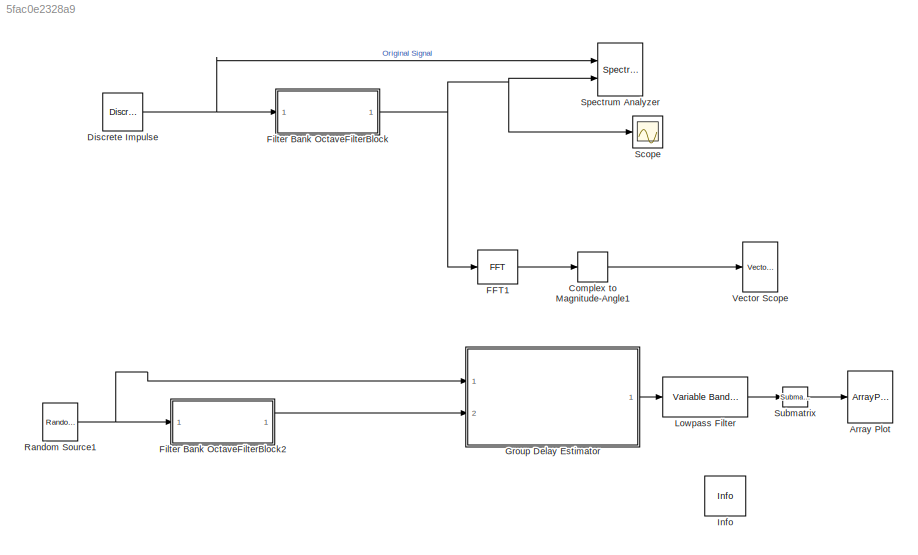
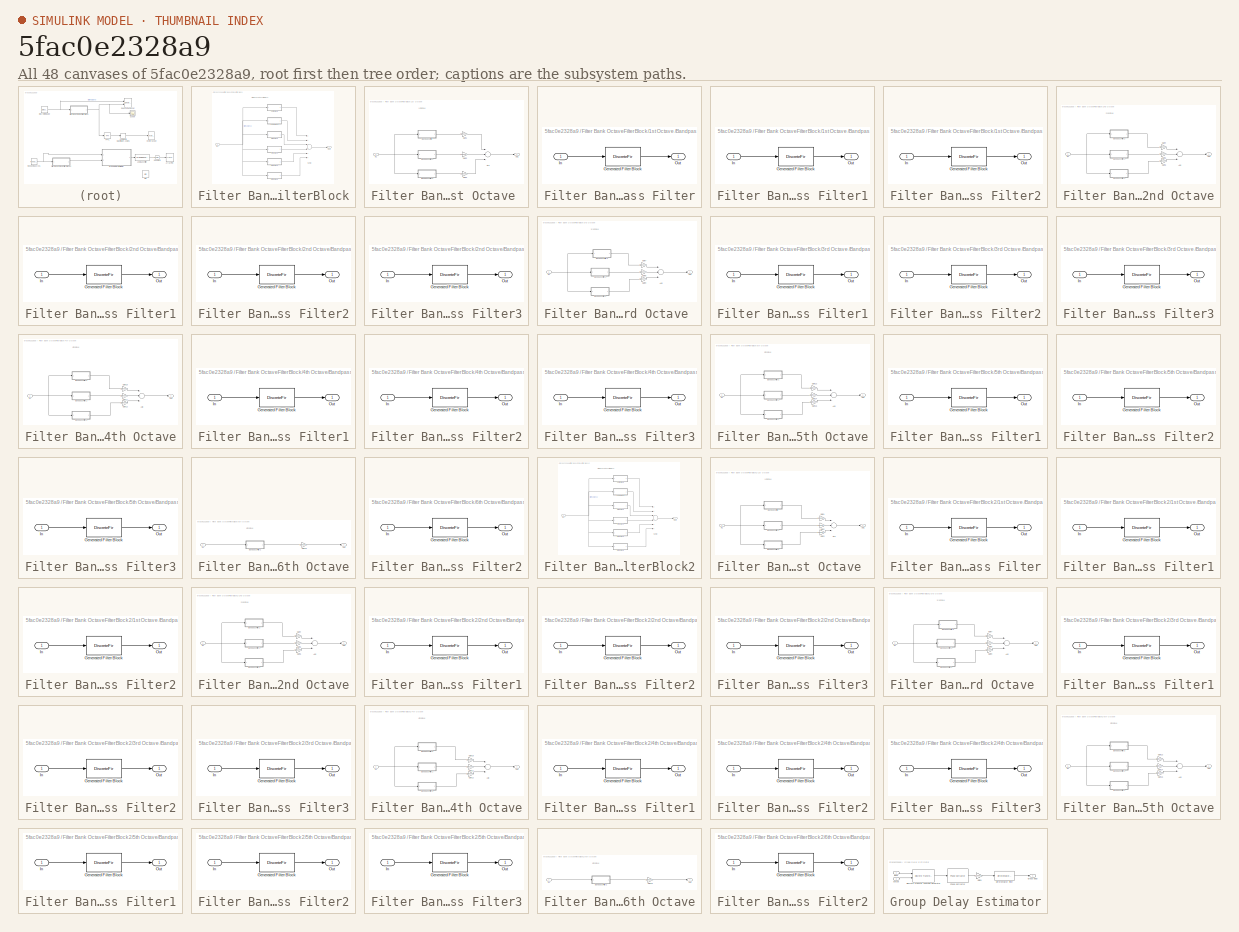
[diagram: thumbnail index - all 48 canvases of the model, root first then tree order]
MODEL slx_5fac0e2328a9
KIND model
CONFIG AbsTol = auto
CONFIG EnableMultiTasking = off
CONFIG FixedStep = auto
CONFIG MaxStep = auto
CONFIG MinStep = auto
CONFIG RelTol = 1e-3
CONFIG SampleTimeConstraint = Unconstrained
CONFIG Solver = FixedStepDiscrete
CONFIG SolverName = FixedStepDiscrete
CONFIG StartTime = 0.0
CONFIG StopTime = 0.01
BLOCK [ArrayPlot] Array Plot
  Ports = [1]
  ScopeSpecificationString = dsp.scopes.ArrayPlotBlockSpecification('CurrentConfiguration', extmgr.ConfigurationSet(extmgr.Configuration('Core','General UI',true),extmgr.Configuration('Core','Source UI',true),extmgr.Configuration('Sources','WiredSimulink',true),extmgr.Configuration('Sources','File',false),extmgr.Configuration('Sources','SPTool',false),extmgr.Configuration('Sources','SimulinkEvent',false),extmgr.Configuration(...<+3063ch>
BLOCK [ComplexToMagnitudeAngle] Complex to Magnitude-Angle1
  Output = Magnitude
  Ports = [1, 1]
BLOCK [Reference] Discrete Impulse  REF=dspsrcs4/Discrete 
Impulse
  Ports = [0, 1]
  SourceBlock = dspsrcs4/Discrete \nImpulse
  SourceProductBaseCode = DS
  SourceProductName = DSP System Toolbox
  SourceType = Discrete Impulse
BLOCK [Reference] FFT1  REF=dspxfrm3/FFT
  Ports = [1, 1]
  SourceBlock = dspxfrm3/FFT
  SourceProductBaseCode = DS
  SourceProductName = DSP System Toolbox
  SourceType = FFT
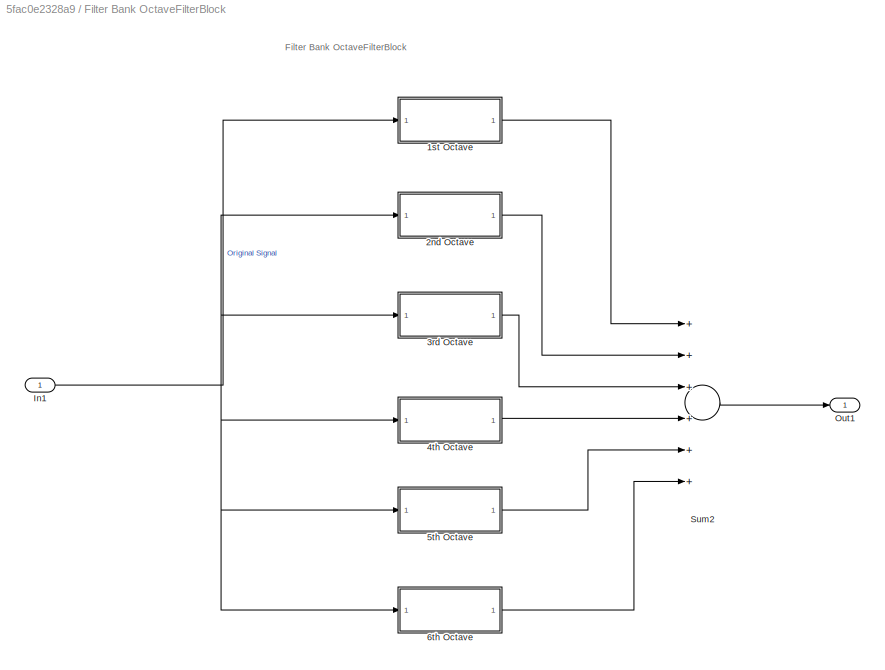
BLOCK [SubSystem] Filter Bank OctaveFilterBlock
  Ports = [1, 1]
  RequestExecContextInheritance = off
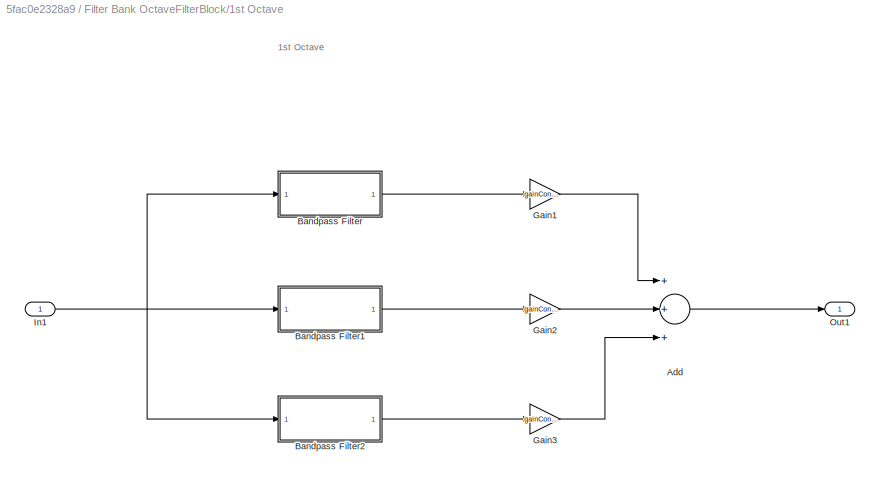
BLOCK [SubSystem] Filter Bank OctaveFilterBlock/1st Octave 
  Ports = [1, 1]
  RequestExecContextInheritance = off
BLOCK [Sum] Filter Bank OctaveFilterBlock/1st Octave /Add
  InputSameDT = off
  Inputs = +++
  OutDataTypeStr = Inherit: Inherit via internal rule
  Ports = [3, 1]
  SaturateOnIntegerOverflow = off
BLOCK [SubSystem] Filter Bank OctaveFilterBlock/1st Octave /Bandpass Filter
  CopyFcn = fdesignblkfcn(gcbh, {'CopyFcn'});
  DialogController = fdesignblkfcn
  InitFcn = fdesignblkfcn(gcbh, {'InitFcn'});
  Ports = [1, 1]
  RequestExecContextInheritance = off
  UserDataPersistent = on
BLOCK [DiscreteFir] Filter Bank OctaveFilterBlock/1st Octave /Bandpass Filter/Generated Filter Block
  Coefficients = [0.000697642726900061898 8.09552427272728785e-05 8.54298578400442639e-05 8.98807771459664761e-05 9.43384731455670006e-05 9.87461148585240788e-05 0.00010312821470486701 0.000107425015934631512 0.000111661748195207504 0.000115768831845649133 0.00011977430759990099 0.000123604129136607282 0.000127288473311339698 0.000130754241930446531 0.000134037240931339594 0.000137069071879046875 0.000139898927035...<+16392ch>
  InputPortMap = u0
  InputProcessing = Columns as channels (frame based)
  OutputPortMap = o0
  Ports = [1, 1]
  Tag = BlockMethodSubSystem
BLOCK [Inport] Filter Bank OctaveFilterBlock/1st Octave /Bandpass Filter/In
  IconDisplay = Port number
BLOCK [Outport] Filter Bank OctaveFilterBlock/1st Octave /Bandpass Filter/Out
  IconDisplay = Port number
BLOCK [SubSystem] Filter Bank OctaveFilterBlock/1st Octave /Bandpass Filter1
  CopyFcn = fdesignblkfcn(gcbh, {'CopyFcn'});
  DialogController = fdesignblkfcn
  InitFcn = fdesignblkfcn(gcbh, {'InitFcn'});
  Ports = [1, 1]
  RequestExecContextInheritance = off
  UserDataPersistent = on
BLOCK [DiscreteFir] Filter Bank OctaveFilterBlock/1st Octave /Bandpass Filter1/Generated Filter Block
  Coefficients = [0.000708175514999469084 0.000104264313023658849 0.000111361362035249646 0.000118517739355487319 0.000125497090197966387 0.000132477975980888757 0.000139220911941990224 0.000145906608764827294 0.000152277950639121871 0.00015852245229541382 0.000164360606620211344 0.00016996857707400422 0.000175054249803248001 0.000179791061638332866 0.000183869927670265743 0.000187484213926622018 0.000190327248390...<+12872ch>
  InputPortMap = u0
  InputProcessing = Columns as channels (frame based)
  OutputPortMap = o0
  Ports = [1, 1]
  Tag = BlockMethodSubSystem
BLOCK [Inport] Filter Bank OctaveFilterBlock/1st Octave /Bandpass Filter1/In
  IconDisplay = Port number
BLOCK [Outport] Filter Bank OctaveFilterBlock/1st Octave /Bandpass Filter1/Out
  IconDisplay = Port number
BLOCK [SubSystem] Filter Bank OctaveFilterBlock/1st Octave /Bandpass Filter2
  CopyFcn = fdesignblkfcn(gcbh, {'CopyFcn'});
  DialogController = fdesignblkfcn
  InitFcn = fdesignblkfcn(gcbh, {'InitFcn'});
  Ports = [1, 1]
  RequestExecContextInheritance = off
  UserDataPersistent = on
BLOCK [DiscreteFir] Filter Bank OctaveFilterBlock/1st Octave /Bandpass Filter2/Generated Filter Block
  Coefficients = [0.000720975150378335978 0.000132465913253748219 0.000143675086256149286 0.00015477809719773768 0.000165724802029335836 0.00017635194787220368 0.00018660193627196718 0.00019629220821321949 0.000205359434361544464 0.000213615111516083348 0.000220989594674704114 0.00022730548345745844 0.000232522830492244671 0.00023645013977597221 0.000239064494026561183 0.000240170220983498372 0.0002397338605313552...<+10083ch>
  InputPortMap = u0
  InputProcessing = Columns as channels (frame based)
  OutputPortMap = o0
  Ports = [1, 1]
  Tag = BlockMethodSubSystem
BLOCK [Inport] Filter Bank OctaveFilterBlock/1st Octave /Bandpass Filter2/In
  IconDisplay = Port number
BLOCK [Outport] Filter Bank OctaveFilterBlock/1st Octave /Bandpass Filter2/Out
  IconDisplay = Port number
BLOCK [Gain] Filter Bank OctaveFilterBlock/1st Octave /Gain1
  Gain = gainConsts(1)
  OutDataTypeStr = Inherit: Inherit via internal rule
  ParamDataTypeStr = Inherit: Inherit via internal rule
  SaturateOnIntegerOverflow = off
BLOCK [Gain] Filter Bank OctaveFilterBlock/1st Octave /Gain2
  Gain = gainConsts(2)
  OutDataTypeStr = Inherit: Inherit via internal rule
  ParamDataTypeStr = Inherit: Inherit via internal rule
  SaturateOnIntegerOverflow = off
BLOCK [Gain] Filter Bank OctaveFilterBlock/1st Octave /Gain3
  Gain = gainConsts(3)
  OutDataTypeStr = Inherit: Inherit via internal rule
  ParamDataTypeStr = Inherit: Inherit via internal rule
  SaturateOnIntegerOverflow = off
BLOCK [Inport] Filter Bank OctaveFilterBlock/1st Octave /In1
  IconDisplay = Port number
BLOCK [Outport] Filter Bank OctaveFilterBlock/1st Octave /Out1
  IconDisplay = Port number
BLOCK [SubSystem] Filter Bank OctaveFilterBlock/2nd Octave
  Ports = [1, 1]
  RequestExecContextInheritance = off
BLOCK [Sum] Filter Bank OctaveFilterBlock/2nd Octave/Add
  InputSameDT = off
  Inputs = +++
  OutDataTypeStr = Inherit: Inherit via internal rule
  Ports = [3, 1]
  SaturateOnIntegerOverflow = off
BLOCK [SubSystem] Filter Bank OctaveFilterBlock/2nd Octave/Bandpass Filter1
  CopyFcn = fdesignblkfcn(gcbh, {'CopyFcn'});
  DialogController = fdesignblkfcn
  InitFcn = fdesignblkfcn(gcbh, {'InitFcn'});
  Ports = [1, 1]
  RequestExecContextInheritance = off
  UserDataPersistent = on
BLOCK [DiscreteFir] Filter Bank OctaveFilterBlock/2nd Octave/Bandpass Filter1/Generated Filter Block
  Coefficients = [0.000760767564164171409 0.000223751714740847351 0.00025243459343590193 0.000280291144494304329 0.000306819543574286119 0.000331222462925934559 0.000352953962257938078 0.000371116746952470744 0.000385038341791835918 0.000393741555759821163 0.000396511609443955533 0.000392331633625824221 0.000380569010551279612 0.000360334373637478077 0.000331187035918907536 0.000292434486049688723 0.00024383590856...<+6195ch>
  InputPortMap = u0
  InputProcessing = Columns as channels (frame based)
  OutputPortMap = o0
  Ports = [1, 1]
  Tag = BlockMethodSubSystem
BLOCK [Inport] Filter Bank OctaveFilterBlock/2nd Octave/Bandpass Filter1/In
  IconDisplay = Port number
BLOCK [Outport] Filter Bank OctaveFilterBlock/2nd Octave/Bandpass Filter1/Out
  IconDisplay = Port number
BLOCK [SubSystem] Filter Bank OctaveFilterBlock/2nd Octave/Bandpass Filter2
  CopyFcn = fdesignblkfcn(gcbh, {'CopyFcn'});
  DialogController = fdesignblkfcn
  InitFcn = fdesignblkfcn(gcbh, {'InitFcn'});
  Ports = [1, 1]
  RequestExecContextInheritance = off
  UserDataPersistent = on
BLOCK [DiscreteFir] Filter Bank OctaveFilterBlock/2nd Octave/Bandpass Filter2/Generated Filter Block
  Coefficients = [0.000733879405990943228 0.000171363636636393999 0.000189363298927883324 0.000207351357043763411 0.000224575992158680812 0.000241198001119195642 0.000256541551693777029 0.000270928678791843621 0.000283602445869043495 0.000294736098855440196 0.000303059619002195042 0.000308858111447877256 0.00031126049951478755 0.0003122727375133677 0.000308306018486230069 0.00030046103591206989 0.00028952607209912...<+7945ch>
  InputPortMap = u0
  InputProcessing = Columns as channels (frame based)
  OutputPortMap = o0
  Ports = [1, 1]
  Tag = BlockMethodSubSystem
BLOCK [Inport] Filter Bank OctaveFilterBlock/2nd Octave/Bandpass Filter2/In
  IconDisplay = Port number
BLOCK [Outport] Filter Bank OctaveFilterBlock/2nd Octave/Bandpass Filter2/Out
  IconDisplay = Port number
BLOCK [SubSystem] Filter Bank OctaveFilterBlock/2nd Octave/Bandpass Filter3
  CopyFcn = fdesignblkfcn(gcbh, {'CopyFcn'});
  DialogController = fdesignblkfcn
  InitFcn = fdesignblkfcn(gcbh, {'InitFcn'});
  Ports = [1, 1]
  RequestExecContextInheritance = off
  UserDataPersistent = on
BLOCK [DiscreteFir] Filter Bank OctaveFilterBlock/2nd Octave/Bandpass Filter3/Generated Filter Block
  Coefficients = [0.00079224570193523467 0.000291618851613097043 0.000336771394108393088 0.00037972618728474315 0.000418876894477109832 0.000452178610308093796 0.000477742671623747252 0.000493400316001670752 0.000497245879491897604 0.000487153556689631231 0.000461454108627056762 0.000418257961463384281 0.000356239254059834425 0.000273907809289963269 0.000170515292377318418 4.53276290643200183e-05 -0.00010139100000...<+4803ch>
  InputPortMap = u0
  InputProcessing = Columns as channels (frame based)
  OutputPortMap = o0
  Ports = [1, 1]
  Tag = BlockMethodSubSystem
BLOCK [Inport] Filter Bank OctaveFilterBlock/2nd Octave/Bandpass Filter3/In
  IconDisplay = Port number
BLOCK [Outport] Filter Bank OctaveFilterBlock/2nd Octave/Bandpass Filter3/Out
  IconDisplay = Port number
BLOCK [Gain] Filter Bank OctaveFilterBlock/2nd Octave/Gain4
  Gain = gainConsts(4)
  OutDataTypeStr = Inherit: Inherit via internal rule
  ParamDataTypeStr = Inherit: Inherit via internal rule
  SaturateOnIntegerOverflow = off
BLOCK [Gain] Filter Bank OctaveFilterBlock/2nd Octave/Gain5
  Gain = gainConsts(5)
  OutDataTypeStr = Inherit: Inherit via internal rule
  ParamDataTypeStr = Inherit: Inherit via internal rule
  SaturateOnIntegerOverflow = off
BLOCK [Gain] Filter Bank OctaveFilterBlock/2nd Octave/Gain6
  Gain = gainConsts(6)
  OutDataTypeStr = Inherit: Inherit via internal rule
  ParamDataTypeStr = Inherit: Inherit via internal rule
  SaturateOnIntegerOverflow = off
BLOCK [Inport] Filter Bank OctaveFilterBlock/2nd Octave/In1
  IconDisplay = Port number
BLOCK [Outport] Filter Bank OctaveFilterBlock/2nd Octave/Out1
  IconDisplay = Port number
BLOCK [SubSystem] Filter Bank OctaveFilterBlock/3rd Octave 
  Ports = [1, 1]
  RequestExecContextInheritance = off
BLOCK [Sum] Filter Bank OctaveFilterBlock/3rd Octave /Add
  InputSameDT = off
  Inputs = +++
  OutDataTypeStr = Inherit: Inherit via internal rule
  Ports = [3, 1]
  SaturateOnIntegerOverflow = off
BLOCK [SubSystem] Filter Bank OctaveFilterBlock/3rd Octave /Bandpass Filter1
  CopyFcn = fdesignblkfcn(gcbh, {'CopyFcn'});
  DialogController = fdesignblkfcn
  InitFcn = fdesignblkfcn(gcbh, {'InitFcn'});
  Ports = [1, 1]
  RequestExecContextInheritance = off
  UserDataPersistent = on
BLOCK [DiscreteFir] Filter Bank OctaveFilterBlock/3rd Octave /Bandpass Filter1/Generated Filter Block
  Coefficients = [0.000879887238468582758 0.000508249215372833614 0.000617342658518047816 0.000709750859737136612 0.000773118552562523671 0.000794581699545184299 0.000761268970378269549 0.000661470667610482353 0.000485326037242428279 0.000226107324449730695 -0.000119219214006592976 -0.000548676537372334893 -0.00105505044346220584 -0.0016245155417541179 -0.00223723423341261286 -0.00286702151283234168 -0.00348278133...<+2875ch>
  InputPortMap = u0
  InputProcessing = Columns as channels (frame based)
  OutputPortMap = o0
  Ports = [1, 1]
  Tag = BlockMethodSubSystem
BLOCK [Inport] Filter Bank OctaveFilterBlock/3rd Octave /Bandpass Filter1/In
  IconDisplay = Port number
BLOCK [Outport] Filter Bank OctaveFilterBlock/3rd Octave /Bandpass Filter1/Out
  IconDisplay = Port number
BLOCK [SubSystem] Filter Bank OctaveFilterBlock/3rd Octave /Bandpass Filter2
  CopyFcn = fdesignblkfcn(gcbh, {'CopyFcn'});
  DialogController = fdesignblkfcn
  InitFcn = fdesignblkfcn(gcbh, {'InitFcn'});
  Ports = [1, 1]
  RequestExecContextInheritance = off
  UserDataPersistent = on
BLOCK [DiscreteFir] Filter Bank OctaveFilterBlock/3rd Octave /Bandpass Filter2/Generated Filter Block
  Coefficients = [0.00063517925852436233 0.000343672449874554925 0.000400769288140107244 0.000434792013947550126 0.000438549848898707017 0.000406668340000819874 0.000338380480193489189 0.000235922884747331017 0.000106019009957604568 -4.17023616409654529e-05 -0.000191109221176357031 -0.000327655663546958095 -0.00043590675857387972 -0.000500702447146835839 -0.000514253419201785261 -0.000472529442225310911 -0.0003812...<+2929ch>
  InputPortMap = u0
  InputProcessing = Columns as channels (frame based)
  OutputPortMap = o0
  Ports = [1, 1]
  Tag = BlockMethodSubSystem
BLOCK [Inport] Filter Bank OctaveFilterBlock/3rd Octave /Bandpass Filter2/In
  IconDisplay = Port number
BLOCK [Outport] Filter Bank OctaveFilterBlock/3rd Octave /Bandpass Filter2/Out
  IconDisplay = Port number
BLOCK [SubSystem] Filter Bank OctaveFilterBlock/3rd Octave /Bandpass Filter3
  CopyFcn = fdesignblkfcn(gcbh, {'CopyFcn'});
  DialogController = fdesignblkfcn
  InitFcn = fdesignblkfcn(gcbh, {'InitFcn'});
  Ports = [1, 1]
  RequestExecContextInheritance = off
  UserDataPersistent = on
BLOCK [DiscreteFir] Filter Bank OctaveFilterBlock/3rd Octave /Bandpass Filter3/Generated Filter Block
  Coefficients = [0.000815437643410750913 0.000382029122691160113 0.000453583888078717956 0.000519511745383416509 0.000576207776322306808 0.000618340948053723409 0.000640792157246298285 0.000637247119229879515 0.000603715647093849535 0.000535998080113586758 0.000430896745634655801 0.00028281214778780523 9.35982464325863265e-05 -0.000139657845800591086 -0.000414830269032640821 -0.000728289989522683105 -0.0010757721...<+3731ch>
  InputPortMap = u0
  InputProcessing = Columns as channels (frame based)
  OutputPortMap = o0
  Ports = [1, 1]
  Tag = BlockMethodSubSystem
BLOCK [Inport] Filter Bank OctaveFilterBlock/3rd Octave /Bandpass Filter3/In
  IconDisplay = Port number
BLOCK [Outport] Filter Bank OctaveFilterBlock/3rd Octave /Bandpass Filter3/Out
  IconDisplay = Port number
BLOCK [Gain] Filter Bank OctaveFilterBlock/3rd Octave /Gain7
  Gain = gainConsts(7)
  OutDataTypeStr = Inherit: Inherit via internal rule
  ParamDataTypeStr = Inherit: Inherit via internal rule
  SaturateOnIntegerOverflow = off
BLOCK [Gain] Filter Bank OctaveFilterBlock/3rd Octave /Gain8
  Gain = gainConsts(8)
  OutDataTypeStr = Inherit: Inherit via internal rule
  ParamDataTypeStr = Inherit: Inherit via internal rule
  SaturateOnIntegerOverflow = off
BLOCK [Gain] Filter Bank OctaveFilterBlock/3rd Octave /Gain9
  Gain = gainConsts(9)
  OutDataTypeStr = Inherit: Inherit via internal rule
  ParamDataTypeStr = Inherit: Inherit via internal rule
  SaturateOnIntegerOverflow = off
BLOCK [Inport] Filter Bank OctaveFilterBlock/3rd Octave /In1
  IconDisplay = Port number
BLOCK [Outport] Filter Bank OctaveFilterBlock/3rd Octave /Out1
  IconDisplay = Port number
BLOCK [SubSystem] Filter Bank OctaveFilterBlock/4th Octave
  Ports = [1, 1]
  RequestExecContextInheritance = off
BLOCK [Sum] Filter Bank OctaveFilterBlock/4th Octave/Add
  InputSameDT = off
  Inputs = +++
  OutDataTypeStr = Inherit: Inherit via internal rule
  Ports = [3, 1]
  SaturateOnIntegerOverflow = off
BLOCK [SubSystem] Filter Bank OctaveFilterBlock/4th Octave/Bandpass Filter1
  CopyFcn = fdesignblkfcn(gcbh, {'CopyFcn'});
  DialogController = fdesignblkfcn
  InitFcn = fdesignblkfcn(gcbh, {'InitFcn'});
  Ports = [1, 1]
  RequestExecContextInheritance = off
  UserDataPersistent = on
BLOCK [DiscreteFir] Filter Bank OctaveFilterBlock/4th Octave/Bandpass Filter1/Generated Filter Block
  Coefficients = [0.000746143131275202732 0.000626565380404880382 0.000727127228911056715 0.000700971958528801248 0.000523883856948233347 0.000209515975131719149 -0.000183787941035216853 -0.000562817572333216805 -0.000826979842018317956 -0.000892680879529335076 -0.000734554600624869394 -0.000404705572708733623 -4.23108492317536512e-05 0.000150082200647903353 -4.61588040558318178e-05 -0.000798459104446176595 -0.002...<+1717ch>
  InputPortMap = u0
  InputProcessing = Columns as channels (frame based)
  OutputPortMap = o0
  Ports = [1, 1]
  Tag = BlockMethodSubSystem
BLOCK [Inport] Filter Bank OctaveFilterBlock/4th Octave/Bandpass Filter1/In
  IconDisplay = Port number
BLOCK [Outport] Filter Bank OctaveFilterBlock/4th Octave/Bandpass Filter1/Out
  IconDisplay = Port number
BLOCK [SubSystem] Filter Bank OctaveFilterBlock/4th Octave/Bandpass Filter2
  CopyFcn = fdesignblkfcn(gcbh, {'CopyFcn'});
  DialogController = fdesignblkfcn
  InitFcn = fdesignblkfcn(gcbh, {'InitFcn'});
  Ports = [1, 1]
  RequestExecContextInheritance = off
  UserDataPersistent = on
BLOCK [DiscreteFir] Filter Bank OctaveFilterBlock/4th Octave/Bandpass Filter2/Generated Filter Block
  Coefficients = [0.000681109254561113779 0.000460307095765863687 0.000539562235073668696 0.000564910164619544623 0.000520950621639371439 0.000402791258609352791 0.000217773398725725143 -1.24941211012565381e-05 -0.00025529870308604592 -0.000470633787392438555 -0.000619360079100998652 -0.000670834362903992808 -0.00061191011434792871 -0.000452804178156005204 -0.000231528095397451626 -1.13097415107503182e-05 0.000125...<+2241ch>
  InputPortMap = u0
  InputProcessing = Columns as channels (frame based)
  OutputPortMap = o0
  Ports = [1, 1]
  Tag = BlockMethodSubSystem
BLOCK [Inport] Filter Bank OctaveFilterBlock/4th Octave/Bandpass Filter2/In
  IconDisplay = Port number
BLOCK [Outport] Filter Bank OctaveFilterBlock/4th Octave/Bandpass Filter2/Out
  IconDisplay = Port number
BLOCK [SubSystem] Filter Bank OctaveFilterBlock/4th Octave/Bandpass Filter3
  CopyFcn = fdesignblkfcn(gcbh, {'CopyFcn'});
  DialogController = fdesignblkfcn
  InitFcn = fdesignblkfcn(gcbh, {'InitFcn'});
  Ports = [1, 1]
  RequestExecContextInheritance = off
  UserDataPersistent = on
BLOCK [DiscreteFir] Filter Bank OctaveFilterBlock/4th Octave/Bandpass Filter3/Generated Filter Block
  Coefficients = [0.000834980414865819356 0.000758537114921308464 0.000781694176598623299 0.00054466429463724173 8.61995659235487112e-05 -0.000435312793062589648 -0.000793750411080690614 -0.000802861100315392694 -0.000439258415819742721 7.69523068391865913e-05 0.000303204344288276117 -0.000277531622028373874 -0.00200611710080180004 -0.00477916301697617774 -0.00788442880375085468 -0.0100514558062380771 -0.009764131...<+1251ch>
  InputPortMap = u0
  InputProcessing = Columns as channels (frame based)
  OutputPortMap = o0
  Ports = [1, 1]
  Tag = BlockMethodSubSystem
BLOCK [Inport] Filter Bank OctaveFilterBlock/4th Octave/Bandpass Filter3/In
  IconDisplay = Port number
BLOCK [Outport] Filter Bank OctaveFilterBlock/4th Octave/Bandpass Filter3/Out
  IconDisplay = Port number
BLOCK [Gain] Filter Bank OctaveFilterBlock/4th Octave/Gain10
  Gain = gainConsts(10)
  OutDataTypeStr = Inherit: Inherit via internal rule
  ParamDataTypeStr = Inherit: Inherit via internal rule
  SaturateOnIntegerOverflow = off
BLOCK [Gain] Filter Bank OctaveFilterBlock/4th Octave/Gain11
  Gain = gainConsts(11)
  OutDataTypeStr = Inherit: Inherit via internal rule
  ParamDataTypeStr = Inherit: Inherit via internal rule
  SaturateOnIntegerOverflow = off
BLOCK [Gain] Filter Bank OctaveFilterBlock/4th Octave/Gain12
  Gain = gainConsts(12)
  OutDataTypeStr = Inherit: Inherit via internal rule
  ParamDataTypeStr = Inherit: Inherit via internal rule
  SaturateOnIntegerOverflow = off
BLOCK [Inport] Filter Bank OctaveFilterBlock/4th Octave/In1
  IconDisplay = Port number
BLOCK [Outport] Filter Bank OctaveFilterBlock/4th Octave/Out1
  IconDisplay = Port number
BLOCK [SubSystem] Filter Bank OctaveFilterBlock/5th Octave
  Ports = [1, 1]
  RequestExecContextInheritance = off
BLOCK [Sum] Filter Bank OctaveFilterBlock/5th Octave/Add
  InputSameDT = off
  Inputs = +++
  OutDataTypeStr = Inherit: Inherit via internal rule
  Ports = [3, 1]
  SaturateOnIntegerOverflow = off
BLOCK [SubSystem] Filter Bank OctaveFilterBlock/5th Octave/Bandpass Filter1
  CopyFcn = fdesignblkfcn(gcbh, {'CopyFcn'});
  DialogController = fdesignblkfcn
  InitFcn = fdesignblkfcn(gcbh, {'InitFcn'});
  Ports = [1, 1]
  RequestExecContextInheritance = off
  UserDataPersistent = on
BLOCK [DiscreteFir] Filter Bank OctaveFilterBlock/5th Octave/Bandpass Filter1/Generated Filter Block
  Coefficients = [0.00114862145201205263 0.00131833285851120871 0.000719536043768426604 -0.000617102813732732145 -0.00145555554540891538 -0.000809215789784403631 0.000382028317752004581 -0.000773186435706838481 -0.0063657485884708008 -0.0139026234890115251 -0.0155350263414090351 -0.0030858431848391852 0.0233594211862954461 0.0503936666519976748 0.0564365647785935384 0.0265988111397687729 -0.0324544713295540493 -0....<+638ch>
  InputPortMap = u0
  InputProcessing = Columns as channels (frame based)
  OutputPortMap = o0
  Ports = [1, 1]
  Tag = BlockMethodSubSystem
BLOCK [Inport] Filter Bank OctaveFilterBlock/5th Octave/Bandpass Filter1/In
  IconDisplay = Port number
BLOCK [Outport] Filter Bank OctaveFilterBlock/5th Octave/Bandpass Filter1/Out
  IconDisplay = Port number
BLOCK [SubSystem] Filter Bank OctaveFilterBlock/5th Octave/Bandpass Filter2
  CopyFcn = fdesignblkfcn(gcbh, {'CopyFcn'});
  DialogController = fdesignblkfcn
  InitFcn = fdesignblkfcn(gcbh, {'InitFcn'});
  Ports = [1, 1]
  RequestExecContextInheritance = off
  UserDataPersistent = on
BLOCK [DiscreteFir] Filter Bank OctaveFilterBlock/5th Octave/Bandpass Filter2/Generated Filter Block
  Coefficients = [0.00151584365982235865 0.00183803143299737966 9.55049013694802748e-05 -0.00217044486937161647 -0.00163083460048615587 0.000321575923661324777 -0.00350795324914445449 -0.0148448813368593623 -0.0189035120885649513 0.00440315076191577243 0.04952140860217287 0.0726968263932043224 0.0290947518963381412 -0.0679363240872678936 -0.136970218721865072 -0.0992890654566937342 0.0330627795074338593 0.15223628...<+419ch>
  InputPortMap = u0
  InputProcessing = Columns as channels (frame based)
  OutputPortMap = o0
  Ports = [1, 1]
  Tag = BlockMethodSubSystem
BLOCK [Inport] Filter Bank OctaveFilterBlock/5th Octave/Bandpass Filter2/In
  IconDisplay = Port number
BLOCK [Outport] Filter Bank OctaveFilterBlock/5th Octave/Bandpass Filter2/Out
  IconDisplay = Port number
BLOCK [SubSystem] Filter Bank OctaveFilterBlock/5th Octave/Bandpass Filter3
  CopyFcn = fdesignblkfcn(gcbh, {'CopyFcn'});
  DialogController = fdesignblkfcn
  InitFcn = fdesignblkfcn(gcbh, {'InitFcn'});
  Ports = [1, 1]
  RequestExecContextInheritance = off
  UserDataPersistent = on
BLOCK [DiscreteFir] Filter Bank OctaveFilterBlock/5th Octave/Bandpass Filter3/Generated Filter Block
  Coefficients = [0.000981554680392821878 0.00115333388075354267 0.00109873388342645326 0.00043982366924410403 -0.000584021660964255439 -0.00138924037976725727 -0.0014157858121889549 -0.000635827430481565267 0.000163068778350900867 -0.000342260347563741181 -0.00312586477499953623 -0.0077442425063377323 -0.0118105160437443017 -0.0116368277017497978 -0.0041020788487417725 0.0110070214340331728 0.0295195677922039483 ...<+916ch>
  InputPortMap = u0
  InputProcessing = Columns as channels (frame based)
  OutputPortMap = o0
  Ports = [1, 1]
  Tag = BlockMethodSubSystem
BLOCK [Inport] Filter Bank OctaveFilterBlock/5th Octave/Bandpass Filter3/In
  IconDisplay = Port number
BLOCK [Outport] Filter Bank OctaveFilterBlock/5th Octave/Bandpass Filter3/Out
  IconDisplay = Port number
BLOCK [Gain] Filter Bank OctaveFilterBlock/5th Octave/Gain13 
  Gain = gainConsts(13)
  OutDataTypeStr = Inherit: Inherit via internal rule
  ParamDataTypeStr = Inherit: Inherit via internal rule
  SaturateOnIntegerOverflow = off
BLOCK [Gain] Filter Bank OctaveFilterBlock/5th Octave/Gain14
  Gain = gainConsts(14)
  OutDataTypeStr = Inherit: Inherit via internal rule
  ParamDataTypeStr = Inherit: Inherit via internal rule
  SaturateOnIntegerOverflow = off
BLOCK [Gain] Filter Bank OctaveFilterBlock/5th Octave/Gain15
  Gain = gainConsts(15)
  OutDataTypeStr = Inherit: Inherit via internal rule
  ParamDataTypeStr = Inherit: Inherit via internal rule
  SaturateOnIntegerOverflow = off
BLOCK [Inport] Filter Bank OctaveFilterBlock/5th Octave/In1
  IconDisplay = Port number
BLOCK [Outport] Filter Bank OctaveFilterBlock/5th Octave/Out1
  IconDisplay = Port number
BLOCK [SubSystem] Filter Bank OctaveFilterBlock/6th Octave
  Ports = [1, 1]
  RequestExecContextInheritance = off
BLOCK [SubSystem] Filter Bank OctaveFilterBlock/6th Octave/Bandpass Filter2
  CopyFcn = fdesignblkfcn(gcbh, {'CopyFcn'});
  DialogController = fdesignblkfcn
  InitFcn = fdesignblkfcn(gcbh, {'InitFcn'});
  Ports = [1, 1]
  RequestExecContextInheritance = off
  UserDataPersistent = on
BLOCK [DiscreteFir] Filter Bank OctaveFilterBlock/6th Octave/Bandpass Filter2/Generated Filter Block
  Coefficients = [0.00244732072074808731 0.00292577073865543311 -0.00210530200146210548 -0.00513776375420919081 -0.000664946389453096426 -0.0044110688449519337 -0.0210527452480272423 -0.00756412752466452832 0.0582259412857624586 0.0876662268743735179 -0.016887458431121067 -0.161171540412106934 -0.129203390110322308 0.0873405369366493101 0.218599960139268856 0.0873405369366493101 -0.129203390110322308 -0.1611715404...<+264ch>
  InputPortMap = u0
  InputProcessing = Columns as channels (frame based)
  OutputPortMap = o0
  Ports = [1, 1]
  Tag = BlockMethodSubSystem
BLOCK [Inport] Filter Bank OctaveFilterBlock/6th Octave/Bandpass Filter2/In
  IconDisplay = Port number
BLOCK [Outport] Filter Bank OctaveFilterBlock/6th Octave/Bandpass Filter2/Out
  IconDisplay = Port number
BLOCK [Gain] Filter Bank OctaveFilterBlock/6th Octave/Gain16
  Gain = gainConsts(16)
  OutDataTypeStr = Inherit: Inherit via internal rule
  ParamDataTypeStr = Inherit: Inherit via internal rule
  SaturateOnIntegerOverflow = off
BLOCK [Inport] Filter Bank OctaveFilterBlock/6th Octave/In1
  IconDisplay = Port number
BLOCK [Outport] Filter Bank OctaveFilterBlock/6th Octave/Out1
  IconDisplay = Port number
BLOCK [Inport] Filter Bank OctaveFilterBlock/In1
  IconDisplay = Port number
BLOCK [Outport] Filter Bank OctaveFilterBlock/Out1
  IconDisplay = Port number
BLOCK [Sum] Filter Bank OctaveFilterBlock/Sum2
  InputSameDT = off
  Inputs = ++++++
  OutDataTypeStr = Inherit: Inherit via internal rule
  Ports = [6, 1]
  SaturateOnIntegerOverflow = off
BLOCK [SubSystem] Filter Bank OctaveFilterBlock2
  Ports = [1, 1]
  RequestExecContextInheritance = off
BLOCK [SubSystem] Filter Bank OctaveFilterBlock2/1st Octave 
  Ports = [1, 1]
  RequestExecContextInheritance = off
BLOCK [Sum] Filter Bank OctaveFilterBlock2/1st Octave /Add
  InputSameDT = off
  Inputs = +++
  OutDataTypeStr = Inherit: Inherit via internal rule
  Ports = [3, 1]
  SaturateOnIntegerOverflow = off
BLOCK [SubSystem] Filter Bank OctaveFilterBlock2/1st Octave /Bandpass Filter
  CopyFcn = fdesignblkfcn(gcbh, {'CopyFcn'});
  DialogController = fdesignblkfcn
  InitFcn = fdesignblkfcn(gcbh, {'InitFcn'});
  Ports = [1, 1]
  RequestExecContextInheritance = off
  UserDataPersistent = on
BLOCK [DiscreteFir] Filter Bank OctaveFilterBlock2/1st Octave /Bandpass Filter/Generated Filter Block
  Coefficients = [0.000697642726900061898 8.09552427272728785e-05 8.54298578400442639e-05 8.98807771459664761e-05 9.43384731455670006e-05 9.87461148585240788e-05 0.00010312821470486701 0.000107425015934631512 0.000111661748195207504 0.000115768831845649133 0.00011977430759990099 0.000123604129136607282 0.000127288473311339698 0.000130754241930446531 0.000134037240931339594 0.000137069071879046875 0.000139898927035...<+16392ch>
  InputPortMap = u0
  InputProcessing = Columns as channels (frame based)
  OutputPortMap = o0
  Ports = [1, 1]
  Tag = BlockMethodSubSystem
BLOCK [Inport] Filter Bank OctaveFilterBlock2/1st Octave /Bandpass Filter/In
  IconDisplay = Port number
BLOCK [Outport] Filter Bank OctaveFilterBlock2/1st Octave /Bandpass Filter/Out
  IconDisplay = Port number
BLOCK [SubSystem] Filter Bank OctaveFilterBlock2/1st Octave /Bandpass Filter1
  CopyFcn = fdesignblkfcn(gcbh, {'CopyFcn'});
  DialogController = fdesignblkfcn
  InitFcn = fdesignblkfcn(gcbh, {'InitFcn'});
  Ports = [1, 1]
  RequestExecContextInheritance = off
  UserDataPersistent = on
BLOCK [DiscreteFir] Filter Bank OctaveFilterBlock2/1st Octave /Bandpass Filter1/Generated Filter Block
  Coefficients = [0.000708175514999469084 0.000104264313023658849 0.000111361362035249646 0.000118517739355487319 0.000125497090197966387 0.000132477975980888757 0.000139220911941990224 0.000145906608764827294 0.000152277950639121871 0.00015852245229541382 0.000164360606620211344 0.00016996857707400422 0.000175054249803248001 0.000179791061638332866 0.000183869927670265743 0.000187484213926622018 0.000190327248390...<+12872ch>
  InputPortMap = u0
  InputProcessing = Columns as channels (frame based)
  OutputPortMap = o0
  Ports = [1, 1]
  Tag = BlockMethodSubSystem
BLOCK [Inport] Filter Bank OctaveFilterBlock2/1st Octave /Bandpass Filter1/In
  IconDisplay = Port number
BLOCK [Outport] Filter Bank OctaveFilterBlock2/1st Octave /Bandpass Filter1/Out
  IconDisplay = Port number
BLOCK [SubSystem] Filter Bank OctaveFilterBlock2/1st Octave /Bandpass Filter2
  CopyFcn = fdesignblkfcn(gcbh, {'CopyFcn'});
  DialogController = fdesignblkfcn
  InitFcn = fdesignblkfcn(gcbh, {'InitFcn'});
  Ports = [1, 1]
  RequestExecContextInheritance = off
  UserDataPersistent = on
BLOCK [DiscreteFir] Filter Bank OctaveFilterBlock2/1st Octave /Bandpass Filter2/Generated Filter Block
  Coefficients = [0.000720975150378335978 0.000132465913253748219 0.000143675086256149286 0.00015477809719773768 0.000165724802029335836 0.00017635194787220368 0.00018660193627196718 0.00019629220821321949 0.000205359434361544464 0.000213615111516083348 0.000220989594674704114 0.00022730548345745844 0.000232522830492244671 0.00023645013977597221 0.000239064494026561183 0.000240170220983498372 0.0002397338605313552...<+10083ch>
  InputPortMap = u0
  InputProcessing = Columns as channels (frame based)
  OutputPortMap = o0
  Ports = [1, 1]
  Tag = BlockMethodSubSystem
BLOCK [Inport] Filter Bank OctaveFilterBlock2/1st Octave /Bandpass Filter2/In
  IconDisplay = Port number
BLOCK [Outport] Filter Bank OctaveFilterBlock2/1st Octave /Bandpass Filter2/Out
  IconDisplay = Port number
BLOCK [Gain] Filter Bank OctaveFilterBlock2/1st Octave /Gain1
  Gain = gainConsts(1)
  OutDataTypeStr = Inherit: Inherit via internal rule
  ParamDataTypeStr = Inherit: Inherit via internal rule
  SaturateOnIntegerOverflow = off
BLOCK [Gain] Filter Bank OctaveFilterBlock2/1st Octave /Gain2
  Gain = gainConsts(2)
  OutDataTypeStr = Inherit: Inherit via internal rule
  ParamDataTypeStr = Inherit: Inherit via internal rule
  SaturateOnIntegerOverflow = off
BLOCK [Gain] Filter Bank OctaveFilterBlock2/1st Octave /Gain3
  Gain = gainConsts(3)
  OutDataTypeStr = Inherit: Inherit via internal rule
  ParamDataTypeStr = Inherit: Inherit via internal rule
  SaturateOnIntegerOverflow = off
BLOCK [Inport] Filter Bank OctaveFilterBlock2/1st Octave /In1
  IconDisplay = Port number
BLOCK [Outport] Filter Bank OctaveFilterBlock2/1st Octave /Out1
  IconDisplay = Port number
BLOCK [SubSystem] Filter Bank OctaveFilterBlock2/2nd Octave
  Ports = [1, 1]
  RequestExecContextInheritance = off
BLOCK [Sum] Filter Bank OctaveFilterBlock2/2nd Octave/Add
  InputSameDT = off
  Inputs = +++
  OutDataTypeStr = Inherit: Inherit via internal rule
  Ports = [3, 1]
  SaturateOnIntegerOverflow = off
BLOCK [SubSystem] Filter Bank OctaveFilterBlock2/2nd Octave/Bandpass Filter1
  CopyFcn = fdesignblkfcn(gcbh, {'CopyFcn'});
  DialogController = fdesignblkfcn
  InitFcn = fdesignblkfcn(gcbh, {'InitFcn'});
  Ports = [1, 1]
  RequestExecContextInheritance = off
  UserDataPersistent = on
BLOCK [DiscreteFir] Filter Bank OctaveFilterBlock2/2nd Octave/Bandpass Filter1/Generated Filter Block
  Coefficients = [0.000760767564164171409 0.000223751714740847351 0.00025243459343590193 0.000280291144494304329 0.000306819543574286119 0.000331222462925934559 0.000352953962257938078 0.000371116746952470744 0.000385038341791835918 0.000393741555759821163 0.000396511609443955533 0.000392331633625824221 0.000380569010551279612 0.000360334373637478077 0.000331187035918907536 0.000292434486049688723 0.00024383590856...<+6195ch>
  InputPortMap = u0
  InputProcessing = Columns as channels (frame based)
  OutputPortMap = o0
  Ports = [1, 1]
  Tag = BlockMethodSubSystem
BLOCK [Inport] Filter Bank OctaveFilterBlock2/2nd Octave/Bandpass Filter1/In
  IconDisplay = Port number
BLOCK [Outport] Filter Bank OctaveFilterBlock2/2nd Octave/Bandpass Filter1/Out
  IconDisplay = Port number
BLOCK [SubSystem] Filter Bank OctaveFilterBlock2/2nd Octave/Bandpass Filter2
  CopyFcn = fdesignblkfcn(gcbh, {'CopyFcn'});
  DialogController = fdesignblkfcn
  InitFcn = fdesignblkfcn(gcbh, {'InitFcn'});
  Ports = [1, 1]
  RequestExecContextInheritance = off
  UserDataPersistent = on
BLOCK [DiscreteFir] Filter Bank OctaveFilterBlock2/2nd Octave/Bandpass Filter2/Generated Filter Block
  Coefficients = [0.000733879405990943228 0.000171363636636393999 0.000189363298927883324 0.000207351357043763411 0.000224575992158680812 0.000241198001119195642 0.000256541551693777029 0.000270928678791843621 0.000283602445869043495 0.000294736098855440196 0.000303059619002195042 0.000308858111447877256 0.00031126049951478755 0.0003122727375133677 0.000308306018486230069 0.00030046103591206989 0.00028952607209912...<+7945ch>
  InputPortMap = u0
  InputProcessing = Columns as channels (frame based)
  OutputPortMap = o0
  Ports = [1, 1]
  Tag = BlockMethodSubSystem
BLOCK [Inport] Filter Bank OctaveFilterBlock2/2nd Octave/Bandpass Filter2/In
  IconDisplay = Port number
BLOCK [Outport] Filter Bank OctaveFilterBlock2/2nd Octave/Bandpass Filter2/Out
  IconDisplay = Port number
BLOCK [SubSystem] Filter Bank OctaveFilterBlock2/2nd Octave/Bandpass Filter3
  CopyFcn = fdesignblkfcn(gcbh, {'CopyFcn'});
  DialogController = fdesignblkfcn
  InitFcn = fdesignblkfcn(gcbh, {'InitFcn'});
  Ports = [1, 1]
  RequestExecContextInheritance = off
  UserDataPersistent = on
BLOCK [DiscreteFir] Filter Bank OctaveFilterBlock2/2nd Octave/Bandpass Filter3/Generated Filter Block
  Coefficients = [0.00079224570193523467 0.000291618851613097043 0.000336771394108393088 0.00037972618728474315 0.000418876894477109832 0.000452178610308093796 0.000477742671623747252 0.000493400316001670752 0.000497245879491897604 0.000487153556689631231 0.000461454108627056762 0.000418257961463384281 0.000356239254059834425 0.000273907809289963269 0.000170515292377318418 4.53276290643200183e-05 -0.00010139100000...<+4803ch>
  InputPortMap = u0
  InputProcessing = Columns as channels (frame based)
  OutputPortMap = o0
  Ports = [1, 1]
  Tag = BlockMethodSubSystem
BLOCK [Inport] Filter Bank OctaveFilterBlock2/2nd Octave/Bandpass Filter3/In
  IconDisplay = Port number
BLOCK [Outport] Filter Bank OctaveFilterBlock2/2nd Octave/Bandpass Filter3/Out
  IconDisplay = Port number
BLOCK [Gain] Filter Bank OctaveFilterBlock2/2nd Octave/Gain4
  Gain = gainConsts(4)
  OutDataTypeStr = Inherit: Inherit via internal rule
  ParamDataTypeStr = Inherit: Inherit via internal rule
  SaturateOnIntegerOverflow = off
BLOCK [Gain] Filter Bank OctaveFilterBlock2/2nd Octave/Gain5
  Gain = gainConsts(5)
  OutDataTypeStr = Inherit: Inherit via internal rule
  ParamDataTypeStr = Inherit: Inherit via internal rule
  SaturateOnIntegerOverflow = off
BLOCK [Gain] Filter Bank OctaveFilterBlock2/2nd Octave/Gain6
  Gain = gainConsts(6)
  OutDataTypeStr = Inherit: Inherit via internal rule
  ParamDataTypeStr = Inherit: Inherit via internal rule
  SaturateOnIntegerOverflow = off
BLOCK [Inport] Filter Bank OctaveFilterBlock2/2nd Octave/In1
  IconDisplay = Port number
BLOCK [Outport] Filter Bank OctaveFilterBlock2/2nd Octave/Out1
  IconDisplay = Port number
BLOCK [SubSystem] Filter Bank OctaveFilterBlock2/3rd Octave 
  Ports = [1, 1]
  RequestExecContextInheritance = off
BLOCK [Sum] Filter Bank OctaveFilterBlock2/3rd Octave /Add
  InputSameDT = off
  Inputs = +++
  OutDataTypeStr = Inherit: Inherit via internal rule
  Ports = [3, 1]
  SaturateOnIntegerOverflow = off
BLOCK [SubSystem] Filter Bank OctaveFilterBlock2/3rd Octave /Bandpass Filter1
  CopyFcn = fdesignblkfcn(gcbh, {'CopyFcn'});
  DialogController = fdesignblkfcn
  InitFcn = fdesignblkfcn(gcbh, {'InitFcn'});
  Ports = [1, 1]
  RequestExecContextInheritance = off
  UserDataPersistent = on
BLOCK [DiscreteFir] Filter Bank OctaveFilterBlock2/3rd Octave /Bandpass Filter1/Generated Filter Block
  Coefficients = [0.000879887238468582758 0.000508249215372833614 0.000617342658518047816 0.000709750859737136612 0.000773118552562523671 0.000794581699545184299 0.000761268970378269549 0.000661470667610482353 0.000485326037242428279 0.000226107324449730695 -0.000119219214006592976 -0.000548676537372334893 -0.00105505044346220584 -0.0016245155417541179 -0.00223723423341261286 -0.00286702151283234168 -0.00348278133...<+2875ch>
  InputPortMap = u0
  InputProcessing = Columns as channels (frame based)
  OutputPortMap = o0
  Ports = [1, 1]
  Tag = BlockMethodSubSystem
BLOCK [Inport] Filter Bank OctaveFilterBlock2/3rd Octave /Bandpass Filter1/In
  IconDisplay = Port number
BLOCK [Outport] Filter Bank OctaveFilterBlock2/3rd Octave /Bandpass Filter1/Out
  IconDisplay = Port number
BLOCK [SubSystem] Filter Bank OctaveFilterBlock2/3rd Octave /Bandpass Filter2
  CopyFcn = fdesignblkfcn(gcbh, {'CopyFcn'});
  DialogController = fdesignblkfcn
  InitFcn = fdesignblkfcn(gcbh, {'InitFcn'});
  Ports = [1, 1]
  RequestExecContextInheritance = off
  UserDataPersistent = on
BLOCK [DiscreteFir] Filter Bank OctaveFilterBlock2/3rd Octave /Bandpass Filter2/Generated Filter Block
  Coefficients = [0.00063517925852436233 0.000343672449874554925 0.000400769288140107244 0.000434792013947550126 0.000438549848898707017 0.000406668340000819874 0.000338380480193489189 0.000235922884747331017 0.000106019009957604568 -4.17023616409654529e-05 -0.000191109221176357031 -0.000327655663546958095 -0.00043590675857387972 -0.000500702447146835839 -0.000514253419201785261 -0.000472529442225310911 -0.0003812...<+2929ch>
  InputPortMap = u0
  InputProcessing = Columns as channels (frame based)
  OutputPortMap = o0
  Ports = [1, 1]
  Tag = BlockMethodSubSystem
BLOCK [Inport] Filter Bank OctaveFilterBlock2/3rd Octave /Bandpass Filter2/In
  IconDisplay = Port number
BLOCK [Outport] Filter Bank OctaveFilterBlock2/3rd Octave /Bandpass Filter2/Out
  IconDisplay = Port number
BLOCK [SubSystem] Filter Bank OctaveFilterBlock2/3rd Octave /Bandpass Filter3
  CopyFcn = fdesignblkfcn(gcbh, {'CopyFcn'});
  DialogController = fdesignblkfcn
  InitFcn = fdesignblkfcn(gcbh, {'InitFcn'});
  Ports = [1, 1]
  RequestExecContextInheritance = off
  UserDataPersistent = on
BLOCK [DiscreteFir] Filter Bank OctaveFilterBlock2/3rd Octave /Bandpass Filter3/Generated Filter Block
  Coefficients = [0.000815437643410750913 0.000382029122691160113 0.000453583888078717956 0.000519511745383416509 0.000576207776322306808 0.000618340948053723409 0.000640792157246298285 0.000637247119229879515 0.000603715647093849535 0.000535998080113586758 0.000430896745634655801 0.00028281214778780523 9.35982464325863265e-05 -0.000139657845800591086 -0.000414830269032640821 -0.000728289989522683105 -0.0010757721...<+3731ch>
  InputPortMap = u0
  InputProcessing = Columns as channels (frame based)
  OutputPortMap = o0
  Ports = [1, 1]
  Tag = BlockMethodSubSystem
BLOCK [Inport] Filter Bank OctaveFilterBlock2/3rd Octave /Bandpass Filter3/In
  IconDisplay = Port number
BLOCK [Outport] Filter Bank OctaveFilterBlock2/3rd Octave /Bandpass Filter3/Out
  IconDisplay = Port number
BLOCK [Gain] Filter Bank OctaveFilterBlock2/3rd Octave /Gain7
  Gain = gainConsts(7)
  OutDataTypeStr = Inherit: Inherit via internal rule
  ParamDataTypeStr = Inherit: Inherit via internal rule
  SaturateOnIntegerOverflow = off
BLOCK [Gain] Filter Bank OctaveFilterBlock2/3rd Octave /Gain8
  Gain = gainConsts(8)
  OutDataTypeStr = Inherit: Inherit via internal rule
  ParamDataTypeStr = Inherit: Inherit via internal rule
  SaturateOnIntegerOverflow = off
BLOCK [Gain] Filter Bank OctaveFilterBlock2/3rd Octave /Gain9
  Gain = gainConsts(9)
  OutDataTypeStr = Inherit: Inherit via internal rule
  ParamDataTypeStr = Inherit: Inherit via internal rule
  SaturateOnIntegerOverflow = off
BLOCK [Inport] Filter Bank OctaveFilterBlock2/3rd Octave /In1
  IconDisplay = Port number
BLOCK [Outport] Filter Bank OctaveFilterBlock2/3rd Octave /Out1
  IconDisplay = Port number
BLOCK [SubSystem] Filter Bank OctaveFilterBlock2/4th Octave
  Ports = [1, 1]
  RequestExecContextInheritance = off
BLOCK [Sum] Filter Bank OctaveFilterBlock2/4th Octave/Add
  InputSameDT = off
  Inputs = +++
  OutDataTypeStr = Inherit: Inherit via internal rule
  Ports = [3, 1]
  SaturateOnIntegerOverflow = off
BLOCK [SubSystem] Filter Bank OctaveFilterBlock2/4th Octave/Bandpass Filter1
  CopyFcn = fdesignblkfcn(gcbh, {'CopyFcn'});
  DialogController = fdesignblkfcn
  InitFcn = fdesignblkfcn(gcbh, {'InitFcn'});
  Ports = [1, 1]
  RequestExecContextInheritance = off
  UserDataPersistent = on
BLOCK [DiscreteFir] Filter Bank OctaveFilterBlock2/4th Octave/Bandpass Filter1/Generated Filter Block
  Coefficients = [0.000746143131275202732 0.000626565380404880382 0.000727127228911056715 0.000700971958528801248 0.000523883856948233347 0.000209515975131719149 -0.000183787941035216853 -0.000562817572333216805 -0.000826979842018317956 -0.000892680879529335076 -0.000734554600624869394 -0.000404705572708733623 -4.23108492317536512e-05 0.000150082200647903353 -4.61588040558318178e-05 -0.000798459104446176595 -0.002...<+1717ch>
  InputPortMap = u0
  InputProcessing = Columns as channels (frame based)
  OutputPortMap = o0
  Ports = [1, 1]
  Tag = BlockMethodSubSystem
BLOCK [Inport] Filter Bank OctaveFilterBlock2/4th Octave/Bandpass Filter1/In
  IconDisplay = Port number
BLOCK [Outport] Filter Bank OctaveFilterBlock2/4th Octave/Bandpass Filter1/Out
  IconDisplay = Port number
BLOCK [SubSystem] Filter Bank OctaveFilterBlock2/4th Octave/Bandpass Filter2
  CopyFcn = fdesignblkfcn(gcbh, {'CopyFcn'});
  DialogController = fdesignblkfcn
  InitFcn = fdesignblkfcn(gcbh, {'InitFcn'});
  Ports = [1, 1]
  RequestExecContextInheritance = off
  UserDataPersistent = on
BLOCK [DiscreteFir] Filter Bank OctaveFilterBlock2/4th Octave/Bandpass Filter2/Generated Filter Block
  Coefficients = [0.000681109254561113779 0.000460307095765863687 0.000539562235073668696 0.000564910164619544623 0.000520950621639371439 0.000402791258609352791 0.000217773398725725143 -1.24941211012565381e-05 -0.00025529870308604592 -0.000470633787392438555 -0.000619360079100998652 -0.000670834362903992808 -0.00061191011434792871 -0.000452804178156005204 -0.000231528095397451626 -1.13097415107503182e-05 0.000125...<+2241ch>
  InputPortMap = u0
  InputProcessing = Columns as channels (frame based)
  OutputPortMap = o0
  Ports = [1, 1]
  Tag = BlockMethodSubSystem
BLOCK [Inport] Filter Bank OctaveFilterBlock2/4th Octave/Bandpass Filter2/In
  IconDisplay = Port number
BLOCK [Outport] Filter Bank OctaveFilterBlock2/4th Octave/Bandpass Filter2/Out
  IconDisplay = Port number
BLOCK [SubSystem] Filter Bank OctaveFilterBlock2/4th Octave/Bandpass Filter3
  CopyFcn = fdesignblkfcn(gcbh, {'CopyFcn'});
  DialogController = fdesignblkfcn
  InitFcn = fdesignblkfcn(gcbh, {'InitFcn'});
  Ports = [1, 1]
  RequestExecContextInheritance = off
  UserDataPersistent = on
BLOCK [DiscreteFir] Filter Bank OctaveFilterBlock2/4th Octave/Bandpass Filter3/Generated Filter Block
  Coefficients = [0.000834980414865819356 0.000758537114921308464 0.000781694176598623299 0.00054466429463724173 8.61995659235487112e-05 -0.000435312793062589648 -0.000793750411080690614 -0.000802861100315392694 -0.000439258415819742721 7.69523068391865913e-05 0.000303204344288276117 -0.000277531622028373874 -0.00200611710080180004 -0.00477916301697617774 -0.00788442880375085468 -0.0100514558062380771 -0.009764131...<+1251ch>
  InputPortMap = u0
  InputProcessing = Columns as channels (frame based)
  OutputPortMap = o0
  Ports = [1, 1]
  Tag = BlockMethodSubSystem
BLOCK [Inport] Filter Bank OctaveFilterBlock2/4th Octave/Bandpass Filter3/In
  IconDisplay = Port number
BLOCK [Outport] Filter Bank OctaveFilterBlock2/4th Octave/Bandpass Filter3/Out
  IconDisplay = Port number
BLOCK [Gain] Filter Bank OctaveFilterBlock2/4th Octave/Gain10
  Gain = gainConsts(10)
  OutDataTypeStr = Inherit: Inherit via internal rule
  ParamDataTypeStr = Inherit: Inherit via internal rule
  SaturateOnIntegerOverflow = off
BLOCK [Gain] Filter Bank OctaveFilterBlock2/4th Octave/Gain11
  Gain = gainConsts(11)
  OutDataTypeStr = Inherit: Inherit via internal rule
  ParamDataTypeStr = Inherit: Inherit via internal rule
  SaturateOnIntegerOverflow = off
BLOCK [Gain] Filter Bank OctaveFilterBlock2/4th Octave/Gain12
  Gain = gainConsts(12)
  OutDataTypeStr = Inherit: Inherit via internal rule
  ParamDataTypeStr = Inherit: Inherit via internal rule
  SaturateOnIntegerOverflow = off
BLOCK [Inport] Filter Bank OctaveFilterBlock2/4th Octave/In1
  IconDisplay = Port number
BLOCK [Outport] Filter Bank OctaveFilterBlock2/4th Octave/Out1
  IconDisplay = Port number
BLOCK [SubSystem] Filter Bank OctaveFilterBlock2/5th Octave
  Ports = [1, 1]
  RequestExecContextInheritance = off
BLOCK [Sum] Filter Bank OctaveFilterBlock2/5th Octave/Add
  InputSameDT = off
  Inputs = +++
  OutDataTypeStr = Inherit: Inherit via internal rule
  Ports = [3, 1]
  SaturateOnIntegerOverflow = off
BLOCK [SubSystem] Filter Bank OctaveFilterBlock2/5th Octave/Bandpass Filter1
  CopyFcn = fdesignblkfcn(gcbh, {'CopyFcn'});
  DialogController = fdesignblkfcn
  InitFcn = fdesignblkfcn(gcbh, {'InitFcn'});
  Ports = [1, 1]
  RequestExecContextInheritance = off
  UserDataPersistent = on
BLOCK [DiscreteFir] Filter Bank OctaveFilterBlock2/5th Octave/Bandpass Filter1/Generated Filter Block
  Coefficients = [0.00114862145201205263 0.00131833285851120871 0.000719536043768426604 -0.000617102813732732145 -0.00145555554540891538 -0.000809215789784403631 0.000382028317752004581 -0.000773186435706838481 -0.0063657485884708008 -0.0139026234890115251 -0.0155350263414090351 -0.0030858431848391852 0.0233594211862954461 0.0503936666519976748 0.0564365647785935384 0.0265988111397687729 -0.0324544713295540493 -0....<+638ch>
  InputPortMap = u0
  InputProcessing = Columns as channels (frame based)
  OutputPortMap = o0
  Ports = [1, 1]
  Tag = BlockMethodSubSystem
BLOCK [Inport] Filter Bank OctaveFilterBlock2/5th Octave/Bandpass Filter1/In
  IconDisplay = Port number
BLOCK [Outport] Filter Bank OctaveFilterBlock2/5th Octave/Bandpass Filter1/Out
  IconDisplay = Port number
BLOCK [SubSystem] Filter Bank OctaveFilterBlock2/5th Octave/Bandpass Filter2
  CopyFcn = fdesignblkfcn(gcbh, {'CopyFcn'});
  DialogController = fdesignblkfcn
  InitFcn = fdesignblkfcn(gcbh, {'InitFcn'});
  Ports = [1, 1]
  RequestExecContextInheritance = off
  UserDataPersistent = on
BLOCK [DiscreteFir] Filter Bank OctaveFilterBlock2/5th Octave/Bandpass Filter2/Generated Filter Block
  Coefficients = [0.00151584365982235865 0.00183803143299737966 9.55049013694802748e-05 -0.00217044486937161647 -0.00163083460048615587 0.000321575923661324777 -0.00350795324914445449 -0.0148448813368593623 -0.0189035120885649513 0.00440315076191577243 0.04952140860217287 0.0726968263932043224 0.0290947518963381412 -0.0679363240872678936 -0.136970218721865072 -0.0992890654566937342 0.0330627795074338593 0.15223628...<+419ch>
  InputPortMap = u0
  InputProcessing = Columns as channels (frame based)
  OutputPortMap = o0
  Ports = [1, 1]
  Tag = BlockMethodSubSystem
BLOCK [Inport] Filter Bank OctaveFilterBlock2/5th Octave/Bandpass Filter2/In
  IconDisplay = Port number
BLOCK [Outport] Filter Bank OctaveFilterBlock2/5th Octave/Bandpass Filter2/Out
  IconDisplay = Port number
BLOCK [SubSystem] Filter Bank OctaveFilterBlock2/5th Octave/Bandpass Filter3
  CopyFcn = fdesignblkfcn(gcbh, {'CopyFcn'});
  DialogController = fdesignblkfcn
  InitFcn = fdesignblkfcn(gcbh, {'InitFcn'});
  Ports = [1, 1]
  RequestExecContextInheritance = off
  UserDataPersistent = on
BLOCK [DiscreteFir] Filter Bank OctaveFilterBlock2/5th Octave/Bandpass Filter3/Generated Filter Block
  Coefficients = [0.000981554680392821878 0.00115333388075354267 0.00109873388342645326 0.00043982366924410403 -0.000584021660964255439 -0.00138924037976725727 -0.0014157858121889549 -0.000635827430481565267 0.000163068778350900867 -0.000342260347563741181 -0.00312586477499953623 -0.0077442425063377323 -0.0118105160437443017 -0.0116368277017497978 -0.0041020788487417725 0.0110070214340331728 0.0295195677922039483 ...<+916ch>
  InputPortMap = u0
  InputProcessing = Columns as channels (frame based)
  OutputPortMap = o0
  Ports = [1, 1]
  Tag = BlockMethodSubSystem
BLOCK [Inport] Filter Bank OctaveFilterBlock2/5th Octave/Bandpass Filter3/In
  IconDisplay = Port number
BLOCK [Outport] Filter Bank OctaveFilterBlock2/5th Octave/Bandpass Filter3/Out
  IconDisplay = Port number
BLOCK [Gain] Filter Bank OctaveFilterBlock2/5th Octave/Gain13 
  Gain = gainConsts(13)
  OutDataTypeStr = Inherit: Inherit via internal rule
  ParamDataTypeStr = Inherit: Inherit via internal rule
  SaturateOnIntegerOverflow = off
BLOCK [Gain] Filter Bank OctaveFilterBlock2/5th Octave/Gain14
  Gain = gainConsts(14)
  OutDataTypeStr = Inherit: Inherit via internal rule
  ParamDataTypeStr = Inherit: Inherit via internal rule
  SaturateOnIntegerOverflow = off
BLOCK [Gain] Filter Bank OctaveFilterBlock2/5th Octave/Gain15
  Gain = gainConsts(15)
  OutDataTypeStr = Inherit: Inherit via internal rule
  ParamDataTypeStr = Inherit: Inherit via internal rule
  SaturateOnIntegerOverflow = off
BLOCK [Inport] Filter Bank OctaveFilterBlock2/5th Octave/In1
  IconDisplay = Port number
BLOCK [Outport] Filter Bank OctaveFilterBlock2/5th Octave/Out1
  IconDisplay = Port number
BLOCK [SubSystem] Filter Bank OctaveFilterBlock2/6th Octave
  Ports = [1, 1]
  RequestExecContextInheritance = off
BLOCK [SubSystem] Filter Bank OctaveFilterBlock2/6th Octave/Bandpass Filter2
  CopyFcn = fdesignblkfcn(gcbh, {'CopyFcn'});
  DialogController = fdesignblkfcn
  InitFcn = fdesignblkfcn(gcbh, {'InitFcn'});
  Ports = [1, 1]
  RequestExecContextInheritance = off
  UserDataPersistent = on
BLOCK [DiscreteFir] Filter Bank OctaveFilterBlock2/6th Octave/Bandpass Filter2/Generated Filter Block
  Coefficients = [0.00244732072074808731 0.00292577073865543311 -0.00210530200146210548 -0.00513776375420919081 -0.000664946389453096426 -0.0044110688449519337 -0.0210527452480272423 -0.00756412752466452832 0.0582259412857624586 0.0876662268743735179 -0.016887458431121067 -0.161171540412106934 -0.129203390110322308 0.0873405369366493101 0.218599960139268856 0.0873405369366493101 -0.129203390110322308 -0.1611715404...<+264ch>
  InputPortMap = u0
  InputProcessing = Columns as channels (frame based)
  OutputPortMap = o0
  Ports = [1, 1]
  Tag = BlockMethodSubSystem
BLOCK [Inport] Filter Bank OctaveFilterBlock2/6th Octave/Bandpass Filter2/In
  IconDisplay = Port number
BLOCK [Outport] Filter Bank OctaveFilterBlock2/6th Octave/Bandpass Filter2/Out
  IconDisplay = Port number
BLOCK [Gain] Filter Bank OctaveFilterBlock2/6th Octave/Gain16
  Gain = gainConsts(16)
  OutDataTypeStr = Inherit: Inherit via internal rule
  ParamDataTypeStr = Inherit: Inherit via internal rule
  SaturateOnIntegerOverflow = off
BLOCK [Inport] Filter Bank OctaveFilterBlock2/6th Octave/In1
  IconDisplay = Port number
BLOCK [Outport] Filter Bank OctaveFilterBlock2/6th Octave/Out1
  IconDisplay = Port number
BLOCK [Inport] Filter Bank OctaveFilterBlock2/In1
  IconDisplay = Port number
BLOCK [Outport] Filter Bank OctaveFilterBlock2/Out1
  IconDisplay = Port number
BLOCK [Sum] Filter Bank OctaveFilterBlock2/Sum2
  InputSameDT = off
  Inputs = ++++++
  OutDataTypeStr = Inherit: Inherit via internal rule
  Ports = [6, 1]
  SaturateOnIntegerOverflow = off
BLOCK [SubSystem] Group Delay Estimator
  Ports = [2, 1]
  RequestExecContextInheritance = off
BLOCK [Reference] Group Delay Estimator/Differentiator Filter  REF=dspfdesign/Differentiator Filter
  Ports = [1, 1]
  SourceBlock = dspfdesign/Differentiator Filter
  SourceProductBaseCode = DS
  SourceProductName = DSP System Toolbox
  SourceType = dsp.Differentiator
BLOCK [Reference] Group Delay Estimator/Discrete Transfer Function Estimator  REF=dspspect3/Discrete
Transfer Function
Estimator
  Ports = [2, 1]
  SourceBlock = dspspect3/Discrete\nTransfer Function\nEstimator
  SourceProductBaseCode = DS
  SourceProductName = DSP System Toolbox
  SourceType = Discrete Transfer Function Estimator
BLOCK [Gain] Group Delay Estimator/Gain1
  Gain = -22050/257
  OutDataTypeStr = Inherit: Inherit via internal rule
  ParamDataTypeStr = Inherit: Inherit via internal rule
  SaturateOnIntegerOverflow = off
BLOCK [Outport] Group Delay Estimator/Group delay
  IconDisplay = Port number
BLOCK [Reference] Group Delay Estimator/Phase Extractor  REF=dspsigops/Phase Extractor
  Ports = [1, 1]
  SourceBlock = dspsigops/Phase Extractor
  SourceProductBaseCode = DS
  SourceProductName = DSP System Toolbox
  SourceType = dsp.PhaseExtractor
BLOCK [Inport] Group Delay Estimator/input
  IconDisplay = Port number
BLOCK [Inport] Group Delay Estimator/output
  IconDisplay = Port number
  Port = 2
BLOCK [Reference] Info  REF=dspmisc/Info
  Ports = []
  SourceBlock = dspmisc/Info
  SourceProductBaseCode = DS
  SourceProductName = DSP System Toolbox
  SourceType = Info
BLOCK [Reference] Lowpass Filter  REF=dspfdesign/Variable Bandwidth
FIR Filter
  Ports = [1, 1]
  SourceBlock = dspfdesign/Variable Bandwidth\nFIR Filter
  SourceProductBaseCode = DS
  SourceProductName = DSP System Toolbox
  SourceType = dsp.simulink.VariableBandwidthFIRFilter
BLOCK [Reference] Random Source1  REF=dspsrcs4/Random
Source
  Ports = [0, 1]
  SourceBlock = dspsrcs4/Random\nSource
  SourceProductBaseCode = DS
  SourceProductName = DSP System Toolbox
  SourceType = Random Source
  UserDataPersistent = on
BLOCK [Scope] Scope
  Floating = off
  NumInputPorts = 1
  Ports = [1]
  ScopeSpecificationString = Simulink.scopes.TimeScopeBlockCfg('CurrentConfiguration', extmgr.ConfigurationSet(extmgr.Configuration('Core','General UI',true),extmgr.Configuration('Core','Source UI',true),extmgr.Configuration('Sources','WiredSimulink',true),extmgr.Configuration('Visuals','Time Domain',true,'SerializedDisplays',{struct('MinYLimReal','-27.21297','MaxYLimReal','33.62336','YLabelReal','','MinYLimMag','0.00000','Ma...<+19649ch>
BLOCK [SpectrumAnalyzer] Spectrum Analyzer
  NumInputPorts = 2
  Ports = [2]
  ScopeSpecificationString = spbscopes.SpectrumAnalyzerBlockCfg('CurrentConfiguration', extmgr.ConfigurationSet(extmgr.Configuration('Core','General UI',true),extmgr.Configuration('Core','Source UI',true),extmgr.Configuration('Sources','WiredSimulink',true),extmgr.Configuration('Visuals','Spectrum',true,'AxesProperties',struct('Color',{[0 0 0],[0 0 0]},'XColor',{[0.686274509803922 0.686274509803922 0.686274509803922],[0.68627...<+2288ch>
BLOCK [Reference] Submatrix  REF=dspmtrx3/Submatrix
  Ports = [1, 1]
  SourceBlock = dspmtrx3/Submatrix
  SourceProductBaseCode = DS
  SourceProductName = DSP System Toolbox
  SourceType = Submatrix
BLOCK [Reference] Vector Scope  REF=dspobslib/Vector
Scope
  Ports = [1]
  SourceBlock = dspobslib/Vector\nScope
  SourceProductBaseCode = DS
  SourceProductName = DSP System Toolbox
  SourceType = Vector Scope
ANNOTATION Filter Bank OctaveFilterBlock: Filter Bank OctaveFilterBlock
ANNOTATION Filter Bank OctaveFilterBlock/1st Octave : 1st Octave
ANNOTATION Filter Bank OctaveFilterBlock/2nd Octave: 2nd Octave
ANNOTATION Filter Bank OctaveFilterBlock/3rd Octave : 3rd Octave
ANNOTATION Filter Bank OctaveFilterBlock/4th Octave: 4th Octave
ANNOTATION Filter Bank OctaveFilterBlock/5th Octave: 5th Octave
ANNOTATION Filter Bank OctaveFilterBlock/6th Octave: 6th Octave
ANNOTATION Filter Bank OctaveFilterBlock2: Filter Bank OctaveFilterBlock
ANNOTATION Filter Bank OctaveFilterBlock2/1st Octave : 1st Octave
ANNOTATION Filter Bank OctaveFilterBlock2/2nd Octave: 2nd Octave
ANNOTATION Filter Bank OctaveFilterBlock2/3rd Octave : 3rd Octave
ANNOTATION Filter Bank OctaveFilterBlock2/4th Octave: 4th Octave
ANNOTATION Filter Bank OctaveFilterBlock2/5th Octave: 5th Octave
ANNOTATION Filter Bank OctaveFilterBlock2/6th Octave: 6th Octave
LINE Complex to Magnitude-Angle1:1 -> Vector Scope:1
NET Discrete Impulse:1 -> Filter Bank OctaveFilterBlock:1, Spectrum Analyzer:1
LINE FFT1:1 -> Complex to Magnitude-Angle1:1
LINE Filter Bank OctaveFilterBlock/1st Octave /Add:1 -> Filter Bank OctaveFilterBlock/1st Octave /Out1:1
LINE Filter Bank OctaveFilterBlock/1st Octave /Bandpass Filter1:1 -> Filter Bank OctaveFilterBlock/1st Octave /Gain2:1
LINE Filter Bank OctaveFilterBlock/1st Octave /Bandpass Filter2:1 -> Filter Bank OctaveFilterBlock/1st Octave /Gain3:1
LINE Filter Bank OctaveFilterBlock/1st Octave /Bandpass Filter:1 -> Filter Bank OctaveFilterBlock/1st Octave /Gain1:1
LINE Filter Bank OctaveFilterBlock/1st Octave /Gain1:1 -> Filter Bank OctaveFilterBlock/1st Octave /Add:1
LINE Filter Bank OctaveFilterBlock/1st Octave /Gain2:1 -> Filter Bank OctaveFilterBlock/1st Octave /Add:2
LINE Filter Bank OctaveFilterBlock/1st Octave /Gain3:1 -> Filter Bank OctaveFilterBlock/1st Octave /Add:3
NET Filter Bank OctaveFilterBlock/1st Octave /In1:1 -> Filter Bank OctaveFilterBlock/1st Octave /Bandpass Filter1:1, Filter Bank OctaveFilterBlock/1st Octave /Bandpass Filter2:1, Filter Bank OctaveFilterBlock/1st Octave /Bandpass Filter:1
LINE Filter Bank OctaveFilterBlock/1st Octave :1 -> Filter Bank OctaveFilterBlock/Sum2:1
LINE Filter Bank OctaveFilterBlock/2nd Octave/Add:1 -> Filter Bank OctaveFilterBlock/2nd Octave/Out1:1
LINE Filter Bank OctaveFilterBlock/2nd Octave/Bandpass Filter1:1 -> Filter Bank OctaveFilterBlock/2nd Octave/Gain5:1
LINE Filter Bank OctaveFilterBlock/2nd Octave/Bandpass Filter2:1 -> Filter Bank OctaveFilterBlock/2nd Octave/Gain4:1
LINE Filter Bank OctaveFilterBlock/2nd Octave/Bandpass Filter3:1 -> Filter Bank OctaveFilterBlock/2nd Octave/Gain6:1
LINE Filter Bank OctaveFilterBlock/2nd Octave/Gain4:1 -> Filter Bank OctaveFilterBlock/2nd Octave/Add:1
LINE Filter Bank OctaveFilterBlock/2nd Octave/Gain5:1 -> Filter Bank OctaveFilterBlock/2nd Octave/Add:2
LINE Filter Bank OctaveFilterBlock/2nd Octave/Gain6:1 -> Filter Bank OctaveFilterBlock/2nd Octave/Add:3
NET Filter Bank OctaveFilterBlock/2nd Octave/In1:1 -> Filter Bank OctaveFilterBlock/2nd Octave/Bandpass Filter1:1, Filter Bank OctaveFilterBlock/2nd Octave/Bandpass Filter2:1, Filter Bank OctaveFilterBlock/2nd Octave/Bandpass Filter3:1
LINE Filter Bank OctaveFilterBlock/2nd Octave:1 -> Filter Bank OctaveFilterBlock/Sum2:2
LINE Filter Bank OctaveFilterBlock/3rd Octave /Add:1 -> Filter Bank OctaveFilterBlock/3rd Octave /Out1:1
LINE Filter Bank OctaveFilterBlock/3rd Octave /Bandpass Filter1:1 -> Filter Bank OctaveFilterBlock/3rd Octave /Gain8:1
LINE Filter Bank OctaveFilterBlock/3rd Octave /Bandpass Filter2:1 -> Filter Bank OctaveFilterBlock/3rd Octave /Gain9:1
LINE Filter Bank OctaveFilterBlock/3rd Octave /Bandpass Filter3:1 -> Filter Bank OctaveFilterBlock/3rd Octave /Gain7:1
LINE Filter Bank OctaveFilterBlock/3rd Octave /Gain7:1 -> Filter Bank OctaveFilterBlock/3rd Octave /Add:1
LINE Filter Bank OctaveFilterBlock/3rd Octave /Gain8:1 -> Filter Bank OctaveFilterBlock/3rd Octave /Add:2
LINE Filter Bank OctaveFilterBlock/3rd Octave /Gain9:1 -> Filter Bank OctaveFilterBlock/3rd Octave /Add:3
NET Filter Bank OctaveFilterBlock/3rd Octave /In1:1 -> Filter Bank OctaveFilterBlock/3rd Octave /Bandpass Filter1:1, Filter Bank OctaveFilterBlock/3rd Octave /Bandpass Filter2:1, Filter Bank OctaveFilterBlock/3rd Octave /Bandpass Filter3:1
LINE Filter Bank OctaveFilterBlock/3rd Octave :1 -> Filter Bank OctaveFilterBlock/Sum2:3
LINE Filter Bank OctaveFilterBlock/4th Octave/Add:1 -> Filter Bank OctaveFilterBlock/4th Octave/Out1:1
LINE Filter Bank OctaveFilterBlock/4th Octave/Bandpass Filter1:1 -> Filter Bank OctaveFilterBlock/4th Octave/Gain11:1
LINE Filter Bank OctaveFilterBlock/4th Octave/Bandpass Filter2:1 -> Filter Bank OctaveFilterBlock/4th Octave/Gain10:1
LINE Filter Bank OctaveFilterBlock/4th Octave/Bandpass Filter3:1 -> Filter Bank OctaveFilterBlock/4th Octave/Gain12:1
LINE Filter Bank OctaveFilterBlock/4th Octave/Gain10:1 -> Filter Bank OctaveFilterBlock/4th Octave/Add:1
LINE Filter Bank OctaveFilterBlock/4th Octave/Gain11:1 -> Filter Bank OctaveFilterBlock/4th Octave/Add:2
LINE Filter Bank OctaveFilterBlock/4th Octave/Gain12:1 -> Filter Bank OctaveFilterBlock/4th Octave/Add:3
NET Filter Bank OctaveFilterBlock/4th Octave/In1:1 -> Filter Bank OctaveFilterBlock/4th Octave/Bandpass Filter1:1, Filter Bank OctaveFilterBlock/4th Octave/Bandpass Filter2:1, Filter Bank OctaveFilterBlock/4th Octave/Bandpass Filter3:1
LINE Filter Bank OctaveFilterBlock/4th Octave:1 -> Filter Bank OctaveFilterBlock/Sum2:4
LINE Filter Bank OctaveFilterBlock/5th Octave/Add:1 -> Filter Bank OctaveFilterBlock/5th Octave/Out1:1
LINE Filter Bank OctaveFilterBlock/5th Octave/Bandpass Filter1:1 -> Filter Bank OctaveFilterBlock/5th Octave/Gain14:1
LINE Filter Bank OctaveFilterBlock/5th Octave/Bandpass Filter2:1 -> Filter Bank OctaveFilterBlock/5th Octave/Gain15:1
LINE Filter Bank OctaveFilterBlock/5th Octave/Bandpass Filter3:1 -> Filter Bank OctaveFilterBlock/5th Octave/Gain13 :1
LINE Filter Bank OctaveFilterBlock/5th Octave/Gain13 :1 -> Filter Bank OctaveFilterBlock/5th Octave/Add:1
LINE Filter Bank OctaveFilterBlock/5th Octave/Gain14:1 -> Filter Bank OctaveFilterBlock/5th Octave/Add:2
LINE Filter Bank OctaveFilterBlock/5th Octave/Gain15:1 -> Filter Bank OctaveFilterBlock/5th Octave/Add:3
NET Filter Bank OctaveFilterBlock/5th Octave/In1:1 -> Filter Bank OctaveFilterBlock/5th Octave/Bandpass Filter1:1, Filter Bank OctaveFilterBlock/5th Octave/Bandpass Filter2:1, Filter Bank OctaveFilterBlock/5th Octave/Bandpass Filter3:1
LINE Filter Bank OctaveFilterBlock/5th Octave:1 -> Filter Bank OctaveFilterBlock/Sum2:5
LINE Filter Bank OctaveFilterBlock/6th Octave/Bandpass Filter2:1 -> Filter Bank OctaveFilterBlock/6th Octave/Gain16:1
LINE Filter Bank OctaveFilterBlock/6th Octave/Gain16:1 -> Filter Bank OctaveFilterBlock/6th Octave/Out1:1
LINE Filter Bank OctaveFilterBlock/6th Octave/In1:1 -> Filter Bank OctaveFilterBlock/6th Octave/Bandpass Filter2:1
LINE Filter Bank OctaveFilterBlock/6th Octave:1 -> Filter Bank OctaveFilterBlock/Sum2:6
NET Filter Bank OctaveFilterBlock/In1:1 -> Filter Bank OctaveFilterBlock/1st Octave :1, Filter Bank OctaveFilterBlock/2nd Octave:1, Filter Bank OctaveFilterBlock/3rd Octave :1, Filter Bank OctaveFilterBlock/4th Octave:1, Filter Bank OctaveFilterBlock/5th Octave:1, Filter Bank OctaveFilterBlock/6th Octave:1
LINE Filter Bank OctaveFilterBlock/Sum2:1 -> Filter Bank OctaveFilterBlock/Out1:1
LINE Filter Bank OctaveFilterBlock2/1st Octave /Add:1 -> Filter Bank OctaveFilterBlock2/1st Octave /Out1:1
LINE Filter Bank OctaveFilterBlock2/1st Octave /Bandpass Filter1:1 -> Filter Bank OctaveFilterBlock2/1st Octave /Gain2:1
LINE Filter Bank OctaveFilterBlock2/1st Octave /Bandpass Filter2:1 -> Filter Bank OctaveFilterBlock2/1st Octave /Gain3:1
LINE Filter Bank OctaveFilterBlock2/1st Octave /Bandpass Filter:1 -> Filter Bank OctaveFilterBlock2/1st Octave /Gain1:1
LINE Filter Bank OctaveFilterBlock2/1st Octave /Gain1:1 -> Filter Bank OctaveFilterBlock2/1st Octave /Add:1
LINE Filter Bank OctaveFilterBlock2/1st Octave /Gain2:1 -> Filter Bank OctaveFilterBlock2/1st Octave /Add:2
LINE Filter Bank OctaveFilterBlock2/1st Octave /Gain3:1 -> Filter Bank OctaveFilterBlock2/1st Octave /Add:3
NET Filter Bank OctaveFilterBlock2/1st Octave /In1:1 -> Filter Bank OctaveFilterBlock2/1st Octave /Bandpass Filter1:1, Filter Bank OctaveFilterBlock2/1st Octave /Bandpass Filter2:1, Filter Bank OctaveFilterBlock2/1st Octave /Bandpass Filter:1
LINE Filter Bank OctaveFilterBlock2/1st Octave :1 -> Filter Bank OctaveFilterBlock2/Sum2:1
LINE Filter Bank OctaveFilterBlock2/2nd Octave/Add:1 -> Filter Bank OctaveFilterBlock2/2nd Octave/Out1:1
LINE Filter Bank OctaveFilterBlock2/2nd Octave/Bandpass Filter1:1 -> Filter Bank OctaveFilterBlock2/2nd Octave/Gain5:1
LINE Filter Bank OctaveFilterBlock2/2nd Octave/Bandpass Filter2:1 -> Filter Bank OctaveFilterBlock2/2nd Octave/Gain4:1
LINE Filter Bank OctaveFilterBlock2/2nd Octave/Bandpass Filter3:1 -> Filter Bank OctaveFilterBlock2/2nd Octave/Gain6:1
LINE Filter Bank OctaveFilterBlock2/2nd Octave/Gain4:1 -> Filter Bank OctaveFilterBlock2/2nd Octave/Add:1
LINE Filter Bank OctaveFilterBlock2/2nd Octave/Gain5:1 -> Filter Bank OctaveFilterBlock2/2nd Octave/Add:2
LINE Filter Bank OctaveFilterBlock2/2nd Octave/Gain6:1 -> Filter Bank OctaveFilterBlock2/2nd Octave/Add:3
NET Filter Bank OctaveFilterBlock2/2nd Octave/In1:1 -> Filter Bank OctaveFilterBlock2/2nd Octave/Bandpass Filter1:1, Filter Bank OctaveFilterBlock2/2nd Octave/Bandpass Filter2:1, Filter Bank OctaveFilterBlock2/2nd Octave/Bandpass Filter3:1
LINE Filter Bank OctaveFilterBlock2/2nd Octave:1 -> Filter Bank OctaveFilterBlock2/Sum2:2
LINE Filter Bank OctaveFilterBlock2/3rd Octave /Add:1 -> Filter Bank OctaveFilterBlock2/3rd Octave /Out1:1
LINE Filter Bank OctaveFilterBlock2/3rd Octave /Bandpass Filter1:1 -> Filter Bank OctaveFilterBlock2/3rd Octave /Gain8:1
LINE Filter Bank OctaveFilterBlock2/3rd Octave /Bandpass Filter2:1 -> Filter Bank OctaveFilterBlock2/3rd Octave /Gain9:1
LINE Filter Bank OctaveFilterBlock2/3rd Octave /Bandpass Filter3:1 -> Filter Bank OctaveFilterBlock2/3rd Octave /Gain7:1
LINE Filter Bank OctaveFilterBlock2/3rd Octave /Gain7:1 -> Filter Bank OctaveFilterBlock2/3rd Octave /Add:1
LINE Filter Bank OctaveFilterBlock2/3rd Octave /Gain8:1 -> Filter Bank OctaveFilterBlock2/3rd Octave /Add:2
LINE Filter Bank OctaveFilterBlock2/3rd Octave /Gain9:1 -> Filter Bank OctaveFilterBlock2/3rd Octave /Add:3
NET Filter Bank OctaveFilterBlock2/3rd Octave /In1:1 -> Filter Bank OctaveFilterBlock2/3rd Octave /Bandpass Filter1:1, Filter Bank OctaveFilterBlock2/3rd Octave /Bandpass Filter2:1, Filter Bank OctaveFilterBlock2/3rd Octave /Bandpass Filter3:1
LINE Filter Bank OctaveFilterBlock2/3rd Octave :1 -> Filter Bank OctaveFilterBlock2/Sum2:3
LINE Filter Bank OctaveFilterBlock2/4th Octave/Add:1 -> Filter Bank OctaveFilterBlock2/4th Octave/Out1:1
LINE Filter Bank OctaveFilterBlock2/4th Octave/Bandpass Filter1:1 -> Filter Bank OctaveFilterBlock2/4th Octave/Gain11:1
LINE Filter Bank OctaveFilterBlock2/4th Octave/Bandpass Filter2:1 -> Filter Bank OctaveFilterBlock2/4th Octave/Gain10:1
LINE Filter Bank OctaveFilterBlock2/4th Octave/Bandpass Filter3:1 -> Filter Bank OctaveFilterBlock2/4th Octave/Gain12:1
LINE Filter Bank OctaveFilterBlock2/4th Octave/Gain10:1 -> Filter Bank OctaveFilterBlock2/4th Octave/Add:1
LINE Filter Bank OctaveFilterBlock2/4th Octave/Gain11:1 -> Filter Bank OctaveFilterBlock2/4th Octave/Add:2
LINE Filter Bank OctaveFilterBlock2/4th Octave/Gain12:1 -> Filter Bank OctaveFilterBlock2/4th Octave/Add:3
NET Filter Bank OctaveFilterBlock2/4th Octave/In1:1 -> Filter Bank OctaveFilterBlock2/4th Octave/Bandpass Filter1:1, Filter Bank OctaveFilterBlock2/4th Octave/Bandpass Filter2:1, Filter Bank OctaveFilterBlock2/4th Octave/Bandpass Filter3:1
LINE Filter Bank OctaveFilterBlock2/4th Octave:1 -> Filter Bank OctaveFilterBlock2/Sum2:4
LINE Filter Bank OctaveFilterBlock2/5th Octave/Add:1 -> Filter Bank OctaveFilterBlock2/5th Octave/Out1:1
LINE Filter Bank OctaveFilterBlock2/5th Octave/Bandpass Filter1:1 -> Filter Bank OctaveFilterBlock2/5th Octave/Gain14:1
LINE Filter Bank OctaveFilterBlock2/5th Octave/Bandpass Filter2:1 -> Filter Bank OctaveFilterBlock2/5th Octave/Gain15:1
LINE Filter Bank OctaveFilterBlock2/5th Octave/Bandpass Filter3:1 -> Filter Bank OctaveFilterBlock2/5th Octave/Gain13 :1
LINE Filter Bank OctaveFilterBlock2/5th Octave/Gain13 :1 -> Filter Bank OctaveFilterBlock2/5th Octave/Add:1
LINE Filter Bank OctaveFilterBlock2/5th Octave/Gain14:1 -> Filter Bank OctaveFilterBlock2/5th Octave/Add:2
LINE Filter Bank OctaveFilterBlock2/5th Octave/Gain15:1 -> Filter Bank OctaveFilterBlock2/5th Octave/Add:3
NET Filter Bank OctaveFilterBlock2/5th Octave/In1:1 -> Filter Bank OctaveFilterBlock2/5th Octave/Bandpass Filter1:1, Filter Bank OctaveFilterBlock2/5th Octave/Bandpass Filter2:1, Filter Bank OctaveFilterBlock2/5th Octave/Bandpass Filter3:1
LINE Filter Bank OctaveFilterBlock2/5th Octave:1 -> Filter Bank OctaveFilterBlock2/Sum2:5
LINE Filter Bank OctaveFilterBlock2/6th Octave/Bandpass Filter2:1 -> Filter Bank OctaveFilterBlock2/6th Octave/Gain16:1
LINE Filter Bank OctaveFilterBlock2/6th Octave/Gain16:1 -> Filter Bank OctaveFilterBlock2/6th Octave/Out1:1
LINE Filter Bank OctaveFilterBlock2/6th Octave/In1:1 -> Filter Bank OctaveFilterBlock2/6th Octave/Bandpass Filter2:1
LINE Filter Bank OctaveFilterBlock2/6th Octave:1 -> Filter Bank OctaveFilterBlock2/Sum2:6
NET Filter Bank OctaveFilterBlock2/In1:1 -> Filter Bank OctaveFilterBlock2/1st Octave :1, Filter Bank OctaveFilterBlock2/2nd Octave:1, Filter Bank OctaveFilterBlock2/3rd Octave :1, Filter Bank OctaveFilterBlock2/4th Octave:1, Filter Bank OctaveFilterBlock2/5th Octave:1, Filter Bank OctaveFilterBlock2/6th Octave:1
LINE Filter Bank OctaveFilterBlock2/Sum2:1 -> Filter Bank OctaveFilterBlock2/Out1:1
LINE Filter Bank OctaveFilterBlock2:1 -> Group Delay Estimator:2
NET Filter Bank OctaveFilterBlock:1 -> FFT1:1, Scope:1, Spectrum Analyzer:2
LINE Group Delay Estimator/Differentiator Filter:1 -> Group Delay Estimator/Group delay:1
LINE Group Delay Estimator/Discrete Transfer Function Estimator:1 -> Group Delay Estimator/Phase Extractor:1
LINE Group Delay Estimator/Gain1:1 -> Group Delay Estimator/Differentiator Filter:1
LINE Group Delay Estimator/Phase Extractor:1 -> Group Delay Estimator/Gain1:1
LINE Group Delay Estimator/input:1 -> Group Delay Estimator/Discrete Transfer Function Estimator:1
LINE Group Delay Estimator/output:1 -> Group Delay Estimator/Discrete Transfer Function Estimator:2
LINE Group Delay Estimator:1 -> Lowpass Filter:1
LINE Lowpass Filter:1 -> Submatrix:1
NET Random Source1:1 -> Filter Bank OctaveFilterBlock2:1, Group Delay Estimator:1
LINE Submatrix:1 -> Array Plot:1
note: NET lines group one-source signal fan-out (src -> all destinations, sorted); 1:1 wires keep LINE
